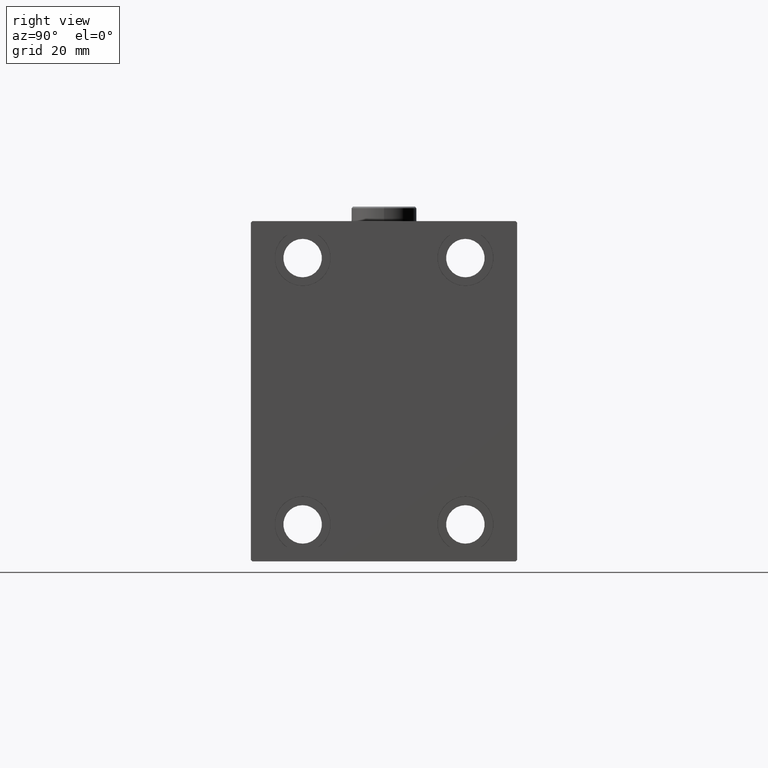
[diagram: clean part render]
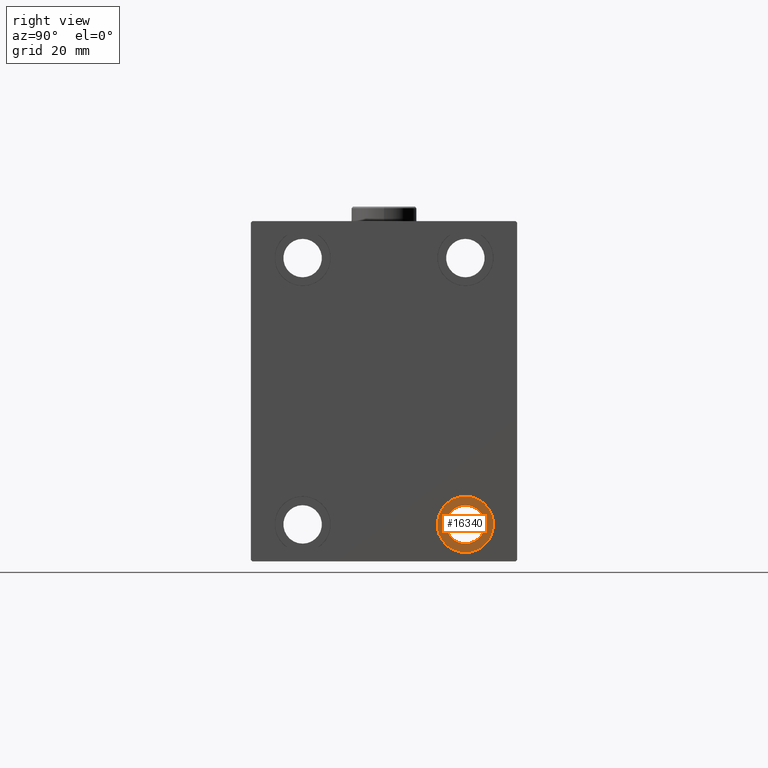
[diagram: same view with one face highlighted and labeled with its STEP entity id]
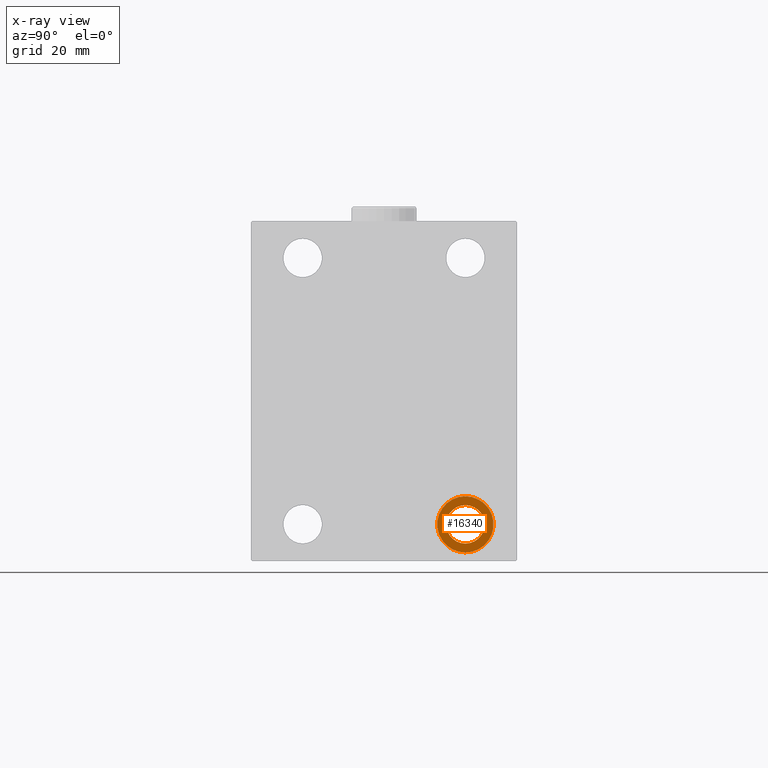
[diagram: x-ray of the same camera — body ghosted, the highlighted face saturated]
A machine part, right view. The second image highlights one B-rep face of the part: STEP entity #16340.
The next image is the same camera in x-ray: the body ghosted, the highlighted face saturated — about 0% of this face is hidden behind the body in this view.
In plain terms, the highlighted planar face has unit normal (1, 0, 0).
Its self-contained STEP definition (entity closure, byte-faithful):
#2203 = EDGE_CURVE ( 'NONE', #44685, #36663, #40321, .T. ) ;
#2520 = CARTESIAN_POINT ( 'NONE',  ( 125.0000000000000000, 27.49999999999998934, -44.99999999999998579 ) ) ;
#4691 = CARTESIAN_POINT ( 'NONE',  ( 125.0000000000000000, 27.49999999999998934, -35.49999999999998579 ) ) ;
#4963 = VERTEX_POINT ( 'NONE', #15276 ) ;
#8881 = AXIS2_PLACEMENT_3D ( 'NONE', #2520, #17023, #31506 ) ;
#9294 = EDGE_CURVE ( 'NONE', #36663, #44685, #32068, .T. ) ;
#9680 = EDGE_LOOP ( 'NONE', ( #10105, #46906 ) ) ;
#10105 = ORIENTED_EDGE ( 'NONE', *, *, #22166, .T. ) ;
#10183 = DIRECTION ( 'NONE',  ( -1.000000000000000000, -0.000000000000000000, -0.000000000000000000 ) ) ;
#10853 = VERTEX_POINT ( 'NONE', #44388 ) ;
#13789 = DIRECTION ( 'NONE',  ( -1.000000000000000000, -0.000000000000000000, -0.000000000000000000 ) ) ;
#14493 = DIRECTION ( 'NONE',  ( 0.000000000000000000, 0.000000000000000000, 1.000000000000000000 ) ) ;
#14749 = DIRECTION ( 'NONE',  ( -1.000000000000000000, -0.000000000000000000, -0.000000000000000000 ) ) ;
#15276 = CARTESIAN_POINT ( 'NONE',  ( 125.0000000000000000, 27.49999999999998934, -38.49999999999998579 ) ) ;
#16340 = ADVANCED_FACE ( 'NONE', ( #34786, #31217 ), #41685, .T. ) ;
#16509 = DIRECTION ( 'NONE',  ( 0.000000000000000000, 0.000000000000000000, 1.000000000000000000 ) ) ;
#17023 = DIRECTION ( 'NONE',  ( -1.000000000000000000, -0.000000000000000000, -0.000000000000000000 ) ) ;
#17553 = CARTESIAN_POINT ( 'NONE',  ( 125.0000000000000000, 27.49999999999998934, -44.99999999999998579 ) ) ;
#18312 = CARTESIAN_POINT ( 'NONE',  ( 125.0000000000000000, 27.49999999999998934, -44.99999999999998579 ) ) ;
#20041 = ORIENTED_EDGE ( 'NONE', *, *, #2203, .F. ) ;
#21307 = CARTESIAN_POINT ( 'NONE',  ( 125.0000000000000000, 27.49999999999998934, -54.49999999999998579 ) ) ;
#21632 = EDGE_CURVE ( 'NONE', #10853, #4963, #27052, .T. ) ;
#22166 = EDGE_CURVE ( 'NONE', #4963, #10853, #30880, .T. ) ;
#22964 = AXIS2_PLACEMENT_3D ( 'NONE', #17553, #10183, #45192 ) ;
#27052 = CIRCLE ( 'NONE', #40736, 6.499999999999999112 ) ;
#30880 = CIRCLE ( 'NONE', #8881, 6.499999999999999112 ) ;
#31217 = FACE_BOUND ( 'NONE', #9680, .T. ) ;
#31506 = DIRECTION ( 'NONE',  ( 0.000000000000000000, 0.000000000000000000, -1.000000000000000000 ) ) ;
#32068 = CIRCLE ( 'NONE', #22964, 9.500000000000001776 ) ;
#33108 = AXIS2_PLACEMENT_3D ( 'NONE', #38115, #34556, #16509 ) ;
#34556 = DIRECTION ( 'NONE',  ( 1.000000000000000000, 0.000000000000000000, -0.000000000000000000 ) ) ;
#34786 = FACE_OUTER_BOUND ( 'NONE', #40007, .T. ) ;
#35760 = AXIS2_PLACEMENT_3D ( 'NONE', #46337, #13789, #14493 ) ;
#36663 = VERTEX_POINT ( 'NONE', #21307 ) ;
#38115 = CARTESIAN_POINT ( 'NONE',  ( 125.0000000000000000, 27.49999999999998934, -44.99999999999998579 ) ) ;
#38569 = ORIENTED_EDGE ( 'NONE', *, *, #9294, .F. ) ;
#40007 = EDGE_LOOP ( 'NONE', ( #38569, #20041 ) ) ;
#40321 = CIRCLE ( 'NONE', #35760, 9.500000000000001776 ) ;
#40400 = DIRECTION ( 'NONE',  ( 0.000000000000000000, 0.000000000000000000, -1.000000000000000000 ) ) ;
#40736 = AXIS2_PLACEMENT_3D ( 'NONE', #18312, #14749, #40400 ) ;
#41685 = PLANE ( 'NONE',  #33108 ) ;
#44388 = CARTESIAN_POINT ( 'NONE',  ( 125.0000000000000000, 27.49999999999998934, -51.49999999999998579 ) ) ;
#44685 = VERTEX_POINT ( 'NONE', #4691 ) ;
#45192 = DIRECTION ( 'NONE',  ( 0.000000000000000000, 0.000000000000000000, 1.000000000000000000 ) ) ;
#46337 = CARTESIAN_POINT ( 'NONE',  ( 125.0000000000000000, 27.49999999999998934, -44.99999999999998579 ) ) ;
#46906 = ORIENTED_EDGE ( 'NONE', *, *, #21632, .T. ) ;